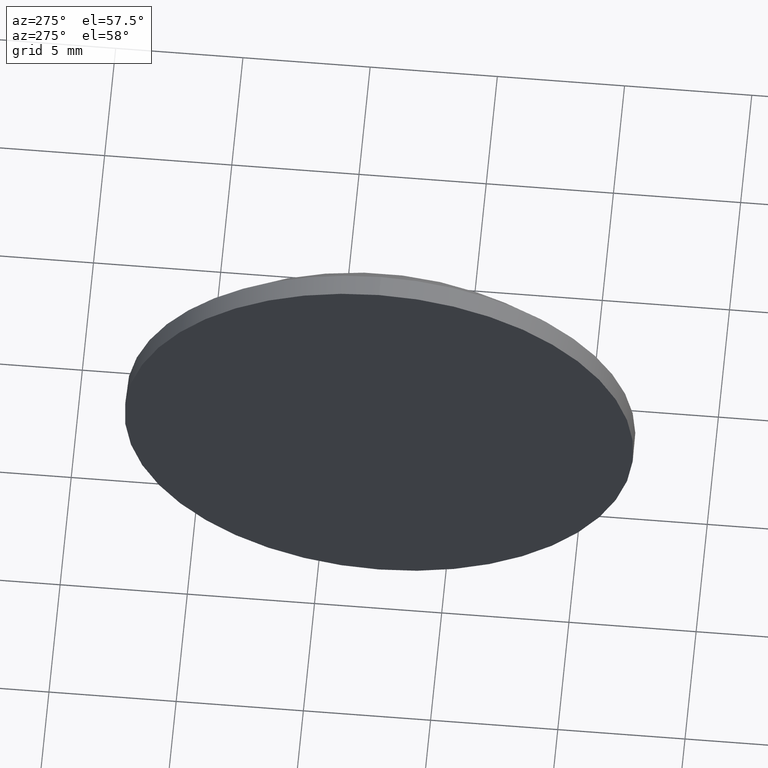
[diagram: clean part render]
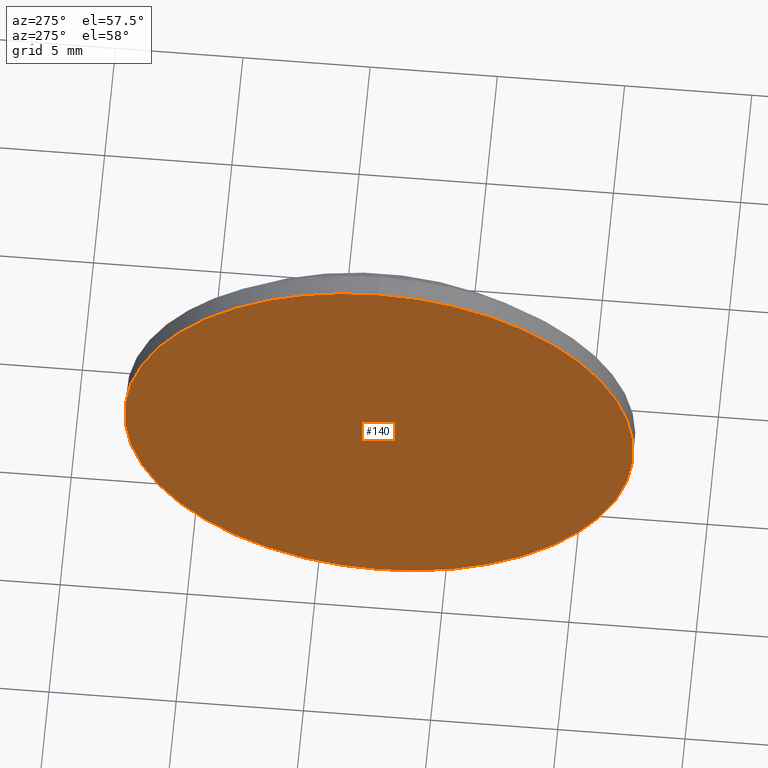
[diagram: same view with one face highlighted and labeled with its STEP entity id]
A machine part, auxiliary view. The second image highlights one B-rep face of the part: STEP entity #140.
In plain terms, the highlighted planar face has unit normal (1, 0, 0).
Its self-contained STEP definition (entity closure, byte-faithful):
#7 = DIRECTION ( 'NONE',  ( -1.000000000000000000, -0.0000000000000000000, -0.0000000000000000000 ) ) ;
#15 = DIRECTION ( 'NONE',  ( 0.0000000000000000000, 0.0000000000000000000, -1.000000000000000000 ) ) ;
#17 = FACE_OUTER_BOUND ( 'NONE', #136, .T. ) ;
#32 = DIRECTION ( 'NONE',  ( 0.0000000000000000000, 0.0000000000000000000, 1.000000000000000000 ) ) ;
#34 = CARTESIAN_POINT ( 'NONE',  ( 441.5199078379598600, 82.59863873987114900, 9.999999999999994700 ) ) ;
#52 = EDGE_CURVE ( 'NONE', #179, #131, #159, .T. ) ;
#63 = AXIS2_PLACEMENT_3D ( 'NONE', #185, #152, #15 ) ;
#75 = AXIS2_PLACEMENT_3D ( 'NONE', #97, #7, #146 ) ;
#85 = DIRECTION ( 'NONE',  ( -1.000000000000000000, -0.0000000000000000000, -0.0000000000000000000 ) ) ;
#88 = ORIENTED_EDGE ( 'NONE', *, *, #52, .T. ) ;
#93 = CIRCLE ( 'NONE', #107, 9.999999999999994700 ) ;
#95 = ORIENTED_EDGE ( 'NONE', *, *, #151, .T. ) ;
#97 = CARTESIAN_POINT ( 'NONE',  ( 441.5199078379598600, 82.59863873987114900, 0.0000000000000000000 ) ) ;
#107 = AXIS2_PLACEMENT_3D ( 'NONE', #174, #85, #32 ) ;
#131 = VERTEX_POINT ( 'NONE', #34 ) ;
#132 = CARTESIAN_POINT ( 'NONE',  ( 441.5199078379598600, 82.59863873987114900, -9.999999999999994700 ) ) ;
#136 = EDGE_LOOP ( 'NONE', ( #95, #88 ) ) ;
#140 = ADVANCED_FACE ( 'NONE', ( #17 ), #158, .F. ) ;
#146 = DIRECTION ( 'NONE',  ( 0.0000000000000000000, 0.0000000000000000000, 1.000000000000000000 ) ) ;
#151 = EDGE_CURVE ( 'NONE', #131, #179, #93, .T. ) ;
#152 = DIRECTION ( 'NONE',  ( 1.000000000000000000, 0.0000000000000000000, 0.0000000000000000000 ) ) ;
#158 = PLANE ( 'NONE',  #63 ) ;
#159 = CIRCLE ( 'NONE', #75, 9.999999999999994700 ) ;
#174 = CARTESIAN_POINT ( 'NONE',  ( 441.5199078379598600, 82.59863873987114900, 0.0000000000000000000 ) ) ;
#179 = VERTEX_POINT ( 'NONE', #132 ) ;
#185 = CARTESIAN_POINT ( 'NONE',  ( 441.5199078379598600, 82.59863873987114900, 0.0000000000000000000 ) ) ;